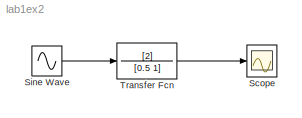
MODEL lab1ex2
KIND model
BLOCK [Scope] Scope
  DataFormat = StructureWithTime
  NumInputPorts = 1
  Ports = [1]
BLOCK [Sin] Sine Wave
  Ports = [0, 1]
  SampleTime = 0
  SineType = Time based
BLOCK [TransferFcn] Transfer Fcn
  Denominator = [0.5 1]
  Numerator = [2]
LINE Sine Wave:1 -> Transfer Fcn:1
LINE Transfer Fcn:1 -> Scope:1
